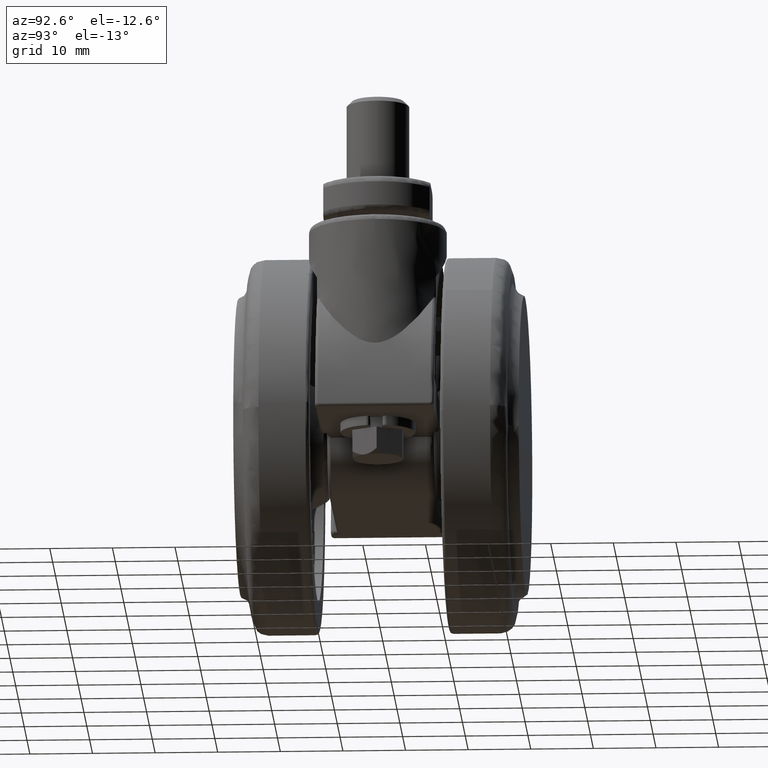
[diagram: clean part render]
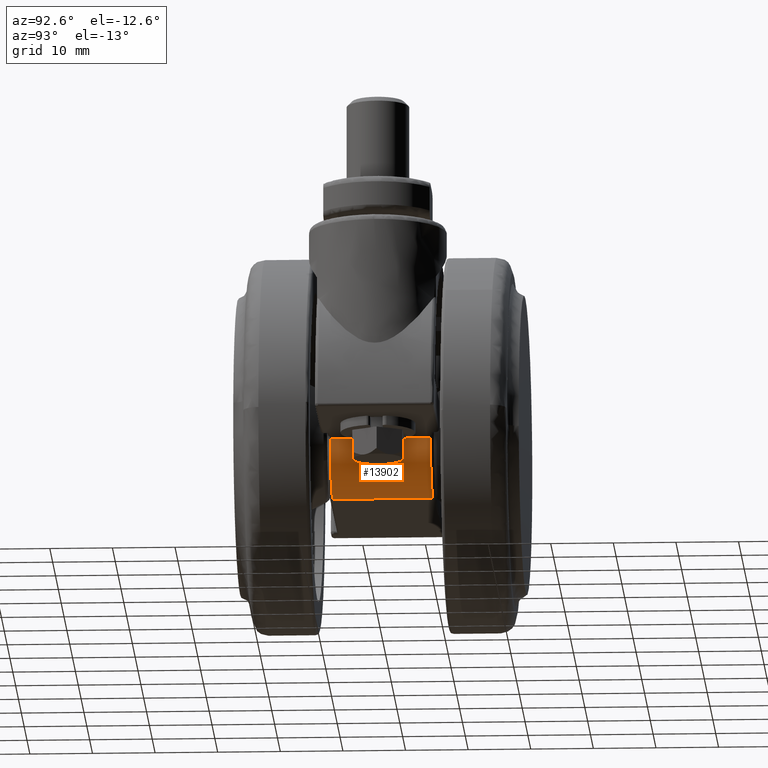
[diagram: same view with one face highlighted and labeled with its STEP entity id]
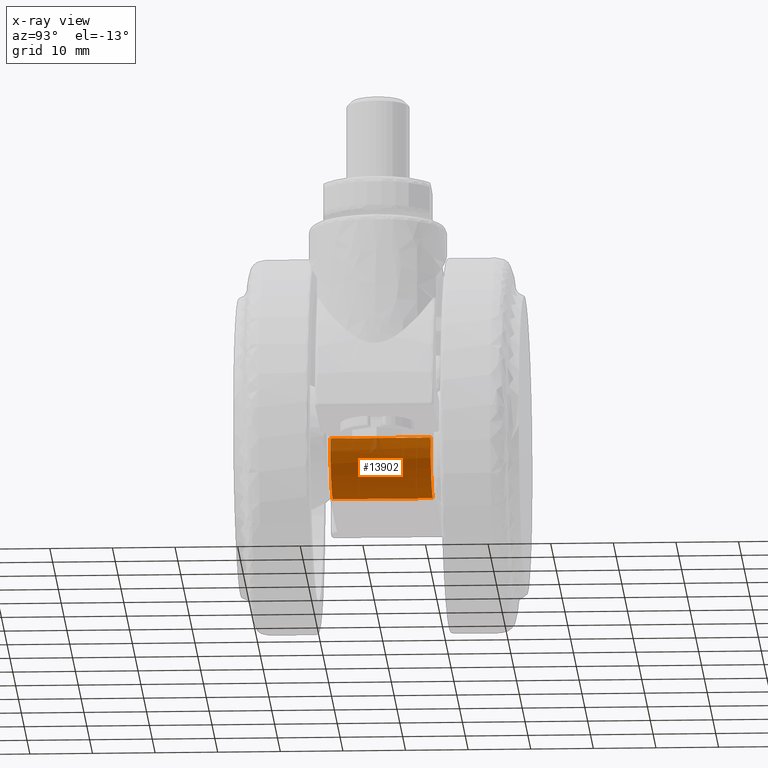
[diagram: x-ray of the same camera — body ghosted, the highlighted face saturated]
A machine part, auxiliary view. The second image highlights one B-rep face of the part: STEP entity #13902.
The next image is the same camera in x-ray: the body ghosted, the highlighted face saturated — about 2% of this face is hidden behind the body in this view.
In plain terms, the highlighted face is a freeform B-spline surface patch.
Its self-contained STEP definition (entity closure, byte-faithful):
#9839=CARTESIAN_POINT('',(8.486872579038730,-7.999999999999900,-0.472222222222222));
#9840=VERTEX_POINT('',#9839);
#9854=CARTESIAN_POINT('',(8.486872579038730,7.999999999999900,-0.472222222222222));
#9855=VERTEX_POINT('',#9854);
#9856=CARTESIAN_POINT('',(8.486872579038730,7.999999999999900,-0.472222222222222));
#9857=CARTESIAN_POINT('',(8.486872579038730,-7.999999999999900,-0.472222222222222));
#9858=QUASI_UNIFORM_CURVE('',1,(#9856,#9857),.UNSPECIFIED.,.F.,.U.);
#9859=EDGE_CURVE('',#9855,#9840,#9858,.T.);
#13149=CARTESIAN_POINT('',(0.0,-7.999999999999900,-8.500000000000000));
#13150=VERTEX_POINT('',#13149);
#13164=CARTESIAN_POINT('',(8.486872579038732,-7.999999999999900,-0.472222222222222));
#13165=CARTESIAN_POINT('',(8.040195074878799,-7.999999999999900,-8.500000000000000));
#13166=CARTESIAN_POINT('',(0.0,-7.999999999999900,-8.500000000000000));
#13174=(BOUNDED_CURVE()B_SPLINE_CURVE(2,(#13164,#13165,#13166),.UNSPECIFIED.,.F.,.U.)CURVE()GEOMETRIC_REPRESENTATION_ITEM()QUASI_UNIFORM_CURVE()RATIONAL_B_SPLINE_CURVE((1.0,0.726483157256779,1.0))REPRESENTATION_ITEM(''));
#13175=EDGE_CURVE('',#9840,#13150,#13174,.T.);
#13781=CARTESIAN_POINT('',(0.0,7.999999999999900,-8.500000000000000));
#13782=VERTEX_POINT('',#13781);
#13783=CARTESIAN_POINT('',(0.0,7.999999999999900,-8.500000000000000));
#13784=CARTESIAN_POINT('',(0.0,-7.999999999999900,-8.500000000000000));
#13785=QUASI_UNIFORM_CURVE('',1,(#13783,#13784),.UNSPECIFIED.,.F.,.U.);
#13786=EDGE_CURVE('',#13782,#13150,#13785,.T.);
#13870=CARTESIAN_POINT('',(8.497087262292235,8.399999999999896,-0.222504060616921));
#13871=CARTESIAN_POINT('',(8.497087262292235,-8.409999999999894,-0.222504060616921));
#13872=CARTESIAN_POINT('',(8.264987945334134,8.399999999999896,-9.086019379138872));
#13873=CARTESIAN_POINT('',(8.264987945334134,-8.409999999999894,-9.086019379138872));
#13874=CARTESIAN_POINT('',(-0.580840076001265,8.399999999999896,-8.480131178590980));
#13875=CARTESIAN_POINT('',(-0.580840076001265,-8.409999999999894,-8.480131178590980));
#13883=(BOUNDED_SURFACE()B_SPLINE_SURFACE(1,2,((#13870,#13872,#13874),(#13871,#13873,#13875)),.UNSPECIFIED.,.F.,.F.,.U.)B_SPLINE_SURFACE_WITH_KNOTS((2,2),(3,3),(0.0,16.809999999999789),(0.0,14.505419607491600),.UNSPECIFIED.)GEOMETRIC_REPRESENTATION_ITEM()RATIONAL_B_SPLINE_SURFACE(((1.0,0.690530755126710,0.995678033089529),(1.0,0.690530755126710,0.995678033089529)))REPRESENTATION_ITEM('')SURFACE());
#13884=ORIENTED_EDGE('',*,*,#13786,.F.);
#13885=CARTESIAN_POINT('',(0.0,7.999999999999900,-8.500000000000000));
#13886=CARTESIAN_POINT('',(8.040195074878797,7.999999999999900,-8.500000000000000));
#13887=CARTESIAN_POINT('',(8.486872579038732,7.999999999999900,-0.472222222222223));
#13895=(BOUNDED_CURVE()B_SPLINE_CURVE(2,(#13885,#13886,#13887),.UNSPECIFIED.,.F.,.U.)CURVE()GEOMETRIC_REPRESENTATION_ITEM()QUASI_UNIFORM_CURVE()RATIONAL_B_SPLINE_CURVE((1.0,0.726483157256779,1.0))REPRESENTATION_ITEM(''));
#13896=EDGE_CURVE('',#13782,#9855,#13895,.T.);
#13897=ORIENTED_EDGE('',*,*,#13896,.T.);
#13898=ORIENTED_EDGE('',*,*,#9859,.T.);
#13899=ORIENTED_EDGE('',*,*,#13175,.T.);
#13900=EDGE_LOOP('',(#13884,#13897,#13898,#13899));
#13901=FACE_OUTER_BOUND('',#13900,.T.);
#13902=ADVANCED_FACE('',(#13901),#13883,.T.);